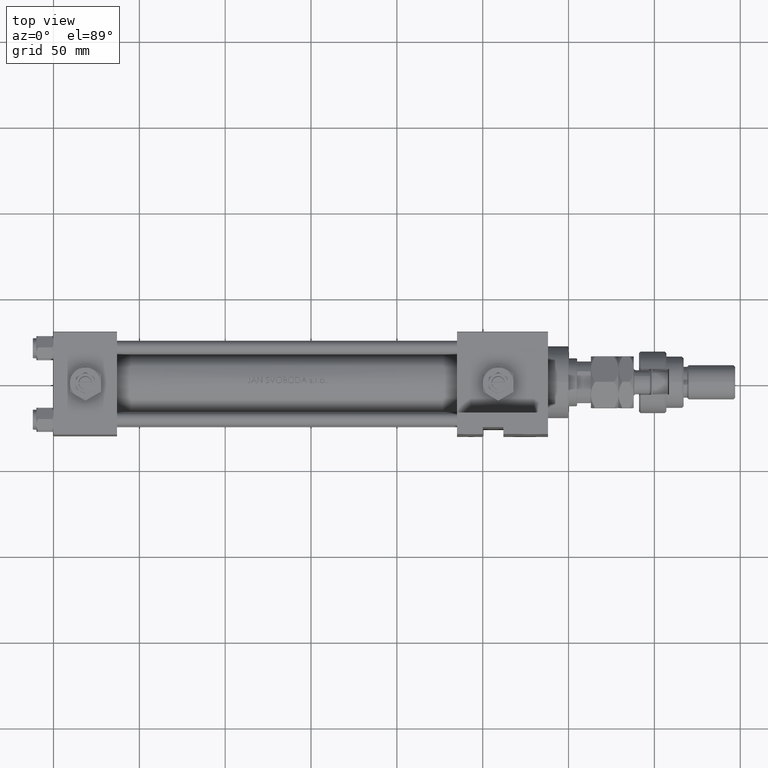
[diagram: clean part render]
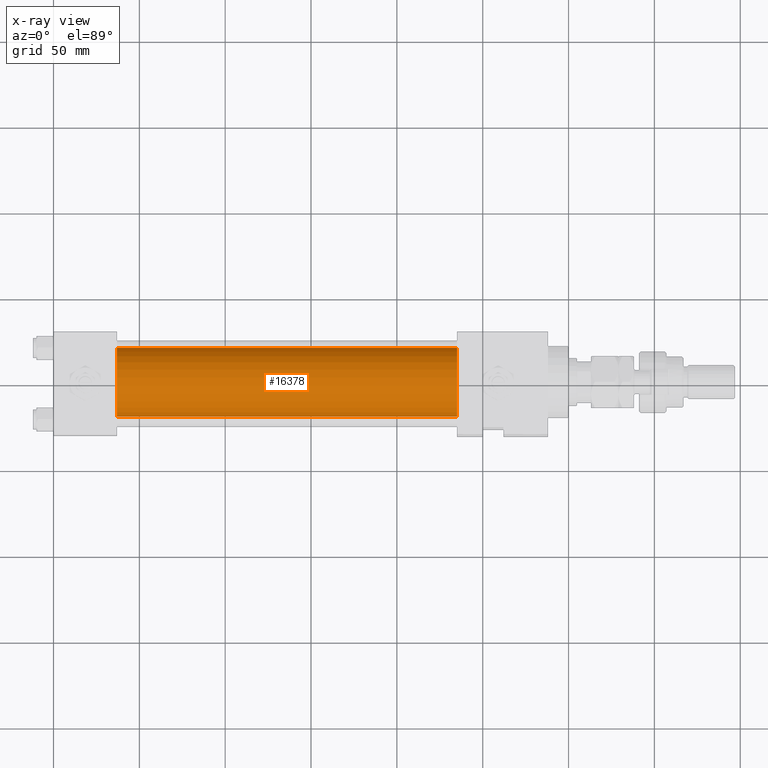
[diagram: x-ray — body ghosted, one internal face saturated and labeled with its STEP entity id]
A machine part, top view, then the same camera in x-ray: the body is ghosted and one INTERNAL B-rep face — a face not visible from any outside direction — is saturated and labeled: STEP entity #16378.
In plain terms, the highlighted cylindrical surface (edge-blend (fillet) strip) has radius 20 mm, axis along (-1, -0, 0).
Its self-contained STEP definition (entity closure, byte-faithful):
#70 = CARTESIAN_POINT ( 'NONE',  ( 37.00000000000000000, 2.326828918379970970E-15, -19.00000000000000000 ) ) ;
#1443 = VERTEX_POINT ( 'NONE', #16299 ) ;
#2013 = DIRECTION ( 'NONE',  ( 1.000000000000000000, 0.000000000000000000, 0.000000000000000000 ) ) ;
#3930 = CARTESIAN_POINT ( 'NONE',  ( 235.0000000000000284, -1.224646799147354686E-16, 1.000000000000000888 ) ) ;
#4173 = AXIS2_PLACEMENT_3D ( 'NONE', #30691, #25794, #30955 ) ;
#6061 = CARTESIAN_POINT ( 'NONE',  ( 37.00000000000000000, -1.224646799147354686E-16, 1.000000000000000888 ) ) ;
#7780 = ORIENTED_EDGE ( 'NONE', *, *, #24569, .T. ) ;
#7968 = LINE ( 'NONE', #29112, #32702 ) ;
#8948 = CARTESIAN_POINT ( 'NONE',  ( 235.0000000000000284, 2.326828918379970970E-15, -19.00000000000000000 ) ) ;
#12199 = CARTESIAN_POINT ( 'NONE',  ( 235.0000000000000284, 2.326828918379970970E-15, -19.00000000000000000 ) ) ;
#13118 = DIRECTION ( 'NONE',  ( 0.000000000000000000, 0.000000000000000000, 1.000000000000000000 ) ) ;
#13707 = ORIENTED_EDGE ( 'NONE', *, *, #50388, .F. ) ;
#14553 = CIRCLE ( 'NONE', #4173, 20.00000000000000000 ) ;
#16299 = CARTESIAN_POINT ( 'NONE',  ( 37.00000000000000000, -1.224646799147354686E-16, 21.00000000000000000 ) ) ;
#16378 = ADVANCED_FACE ( 'NONE', ( #32657 ), #20701, .F. ) ;
#20379 = CIRCLE ( 'NONE', #53338, 20.00000000000000000 ) ;
#20701 = CYLINDRICAL_SURFACE ( 'NONE', #34380, 20.00000000000000000 ) ;
#21417 = VERTEX_POINT ( 'NONE', #70 ) ;
#24569 = EDGE_CURVE ( 'NONE', #44035, #21417, #29281, .T. ) ;
#25794 = DIRECTION ( 'NONE',  ( 1.000000000000000000, 0.000000000000000000, 0.000000000000000000 ) ) ;
#26430 = EDGE_CURVE ( 'NONE', #40197, #44035, #14553, .T. ) ;
#27447 = DIRECTION ( 'NONE',  ( 0.000000000000000000, 0.000000000000000000, -1.000000000000000000 ) ) ;
#27913 = EDGE_LOOP ( 'NONE', ( #46556, #7780, #13707, #34379 ) ) ;
#29112 = CARTESIAN_POINT ( 'NONE',  ( 235.0000000000000284, -1.224646799147354686E-16, 21.00000000000000000 ) ) ;
#29281 = LINE ( 'NONE', #8948, #44199 ) ;
#29623 = EDGE_CURVE ( 'NONE', #40197, #1443, #7968, .T. ) ;
#30691 = CARTESIAN_POINT ( 'NONE',  ( 235.0000000000000284, -1.224646799147354686E-16, 1.000000000000000888 ) ) ;
#30955 = DIRECTION ( 'NONE',  ( 0.000000000000000000, 0.000000000000000000, -1.000000000000000000 ) ) ;
#32657 = FACE_OUTER_BOUND ( 'NONE', #27913, .T. ) ;
#32702 = VECTOR ( 'NONE', #49485, 1000.000000000000000 ) ;
#34366 = CARTESIAN_POINT ( 'NONE',  ( 235.0000000000000284, -1.224646799147354686E-16, 21.00000000000000000 ) ) ;
#34379 = ORIENTED_EDGE ( 'NONE', *, *, #29623, .F. ) ;
#34380 = AXIS2_PLACEMENT_3D ( 'NONE', #3930, #46210, #13118 ) ;
#40197 = VERTEX_POINT ( 'NONE', #34366 ) ;
#44035 = VERTEX_POINT ( 'NONE', #12199 ) ;
#44199 = VECTOR ( 'NONE', #45839, 1000.000000000000000 ) ;
#45839 = DIRECTION ( 'NONE',  ( -1.000000000000000000, -0.000000000000000000, -0.000000000000000000 ) ) ;
#46210 = DIRECTION ( 'NONE',  ( -1.000000000000000000, -0.000000000000000000, -0.000000000000000000 ) ) ;
#46556 = ORIENTED_EDGE ( 'NONE', *, *, #26430, .T. ) ;
#49485 = DIRECTION ( 'NONE',  ( -1.000000000000000000, -0.000000000000000000, -0.000000000000000000 ) ) ;
#50388 = EDGE_CURVE ( 'NONE', #1443, #21417, #20379, .T. ) ;
#53338 = AXIS2_PLACEMENT_3D ( 'NONE', #6061, #2013, #27447 ) ;